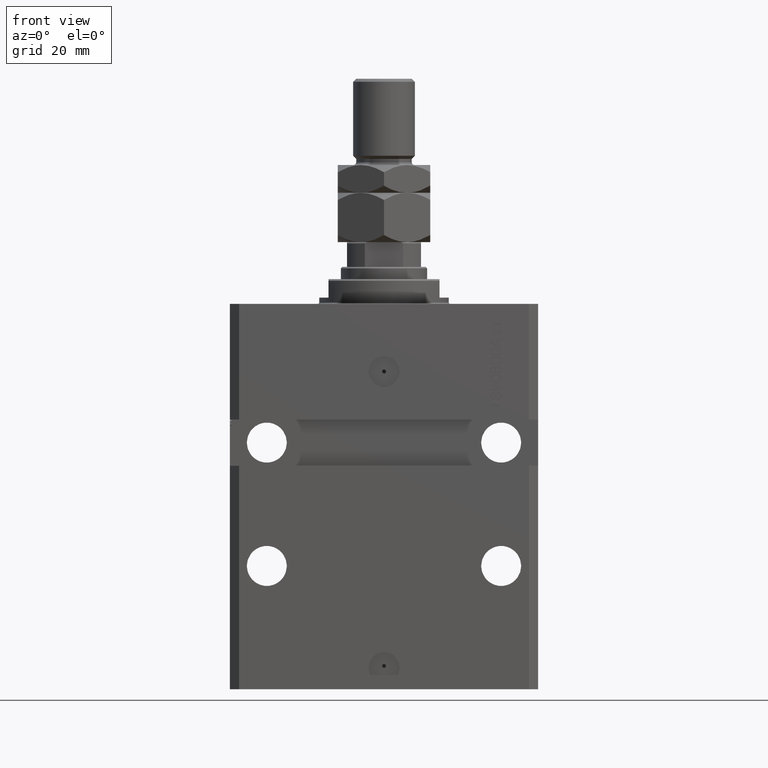
[diagram: clean part render]
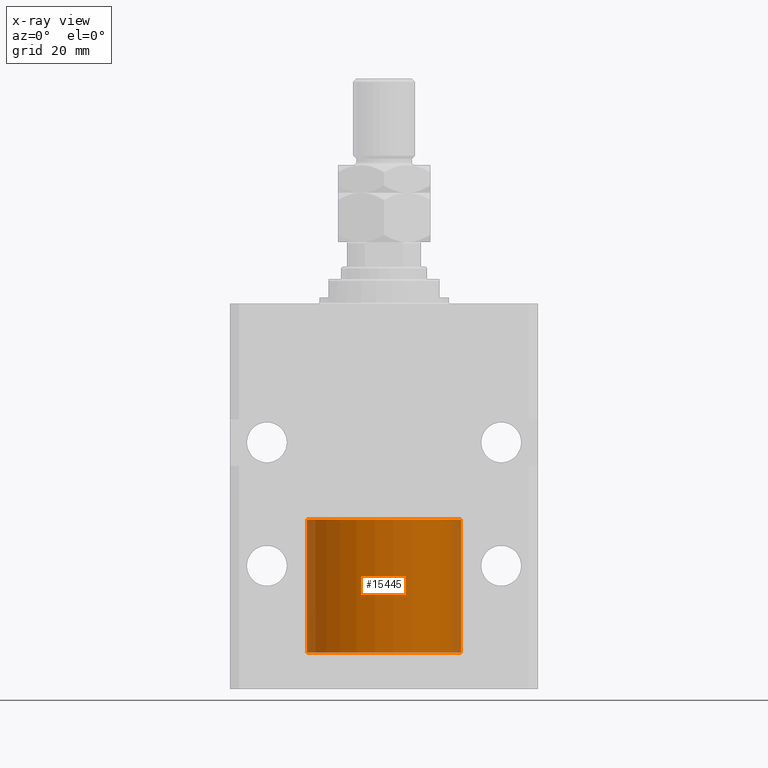
[diagram: x-ray — body ghosted, one internal face saturated and labeled with its STEP entity id]
A machine part, front view, then the same camera in x-ray: the body is ghosted and one INTERNAL B-rep face — a face not visible from any outside direction — is saturated and labeled: STEP entity #15445.
In plain terms, the highlighted cylindrical surface (partial cylindrical patch) has radius 25 mm, axis along (-0, -0, -1).
Its self-contained STEP definition (entity closure, byte-faithful):
#2008 = EDGE_CURVE ( 'NONE', #2793, #33410, #36434, .T. ) ;
#2548 = CYLINDRICAL_SURFACE ( 'NONE', #14278, 25.00000000000000000 ) ;
#2572 = ORIENTED_EDGE ( 'NONE', *, *, #35087, .T. ) ;
#2793 = VERTEX_POINT ( 'NONE', #19365 ) ;
#4180 = DIRECTION ( 'NONE',  ( 0.000000000000000000, 0.000000000000000000, 1.000000000000000000 ) ) ;
#13877 = CARTESIAN_POINT ( 'NONE',  ( -25.00000000000000000, 0.000000000000000000, 43.10000000000000142 ) ) ;
#14278 = AXIS2_PLACEMENT_3D ( 'NONE', #21927, #14641, #45337 ) ;
#14641 = DIRECTION ( 'NONE',  ( -0.000000000000000000, -0.000000000000000000, -1.000000000000000000 ) ) ;
#14756 = AXIS2_PLACEMENT_3D ( 'NONE', #36362, #21737, #21007 ) ;
#15445 = ADVANCED_FACE ( 'NONE', ( #29475 ), #2548, .T. ) ;
#17100 = CARTESIAN_POINT ( 'NONE',  ( 25.00000000000000000, 3.061616997868383043E-15, 43.10000000000000142 ) ) ;
#17221 = EDGE_CURVE ( 'NONE', #2793, #34788, #24945, .T. ) ;
#17632 = CARTESIAN_POINT ( 'NONE',  ( 25.00000000000000000, 3.061616997868383043E-15, 43.10000000000000142 ) ) ;
#18076 = DIRECTION ( 'NONE',  ( -0.000000000000000000, -0.000000000000000000, -1.000000000000000000 ) ) ;
#18214 = VECTOR ( 'NONE', #29454, 1000.000000000000000 ) ;
#18236 = ORIENTED_EDGE ( 'NONE', *, *, #17221, .T. ) ;
#19365 = CARTESIAN_POINT ( 'NONE',  ( -25.00000000000000000, 0.000000000000000000, 43.10000000000000142 ) ) ;
#20530 = CIRCLE ( 'NONE', #40592, 25.00000000000000000 ) ;
#21007 = DIRECTION ( 'NONE',  ( 1.000000000000000000, 0.000000000000000000, 0.000000000000000000 ) ) ;
#21737 = DIRECTION ( 'NONE',  ( 0.000000000000000000, 0.000000000000000000, 1.000000000000000000 ) ) ;
#21927 = CARTESIAN_POINT ( 'NONE',  ( 0.000000000000000000, 0.000000000000000000, 43.10000000000000142 ) ) ;
#23045 = VECTOR ( 'NONE', #18076, 1000.000000000000000 ) ;
#24155 = VERTEX_POINT ( 'NONE', #35464 ) ;
#24945 = LINE ( 'NONE', #13877, #18214 ) ;
#26584 = DIRECTION ( 'NONE',  ( 1.000000000000000000, 0.000000000000000000, 0.000000000000000000 ) ) ;
#29454 = DIRECTION ( 'NONE',  ( -0.000000000000000000, -0.000000000000000000, -1.000000000000000000 ) ) ;
#29475 = FACE_OUTER_BOUND ( 'NONE', #33957, .T. ) ;
#32406 = CARTESIAN_POINT ( 'NONE',  ( -25.00000000000000000, 0.000000000000000000, 0.000000000000000000 ) ) ;
#33410 = VERTEX_POINT ( 'NONE', #17632 ) ;
#33957 = EDGE_LOOP ( 'NONE', ( #37648, #44880, #18236, #2572 ) ) ;
#34788 = VERTEX_POINT ( 'NONE', #32406 ) ;
#35087 = EDGE_CURVE ( 'NONE', #34788, #24155, #20530, .T. ) ;
#35132 = CARTESIAN_POINT ( 'NONE',  ( 0.000000000000000000, 0.000000000000000000, 0.000000000000000000 ) ) ;
#35464 = CARTESIAN_POINT ( 'NONE',  ( 25.00000000000000000, 3.061616997868383043E-15, 0.000000000000000000 ) ) ;
#36362 = CARTESIAN_POINT ( 'NONE',  ( 0.000000000000000000, 0.000000000000000000, 43.10000000000000142 ) ) ;
#36434 = CIRCLE ( 'NONE', #14756, 25.00000000000000000 ) ;
#36456 = LINE ( 'NONE', #17100, #23045 ) ;
#37648 = ORIENTED_EDGE ( 'NONE', *, *, #38157, .F. ) ;
#38157 = EDGE_CURVE ( 'NONE', #33410, #24155, #36456, .T. ) ;
#40592 = AXIS2_PLACEMENT_3D ( 'NONE', #35132, #4180, #26584 ) ;
#44880 = ORIENTED_EDGE ( 'NONE', *, *, #2008, .F. ) ;
#45337 = DIRECTION ( 'NONE',  ( -1.000000000000000000, 0.000000000000000000, 0.000000000000000000 ) ) ;